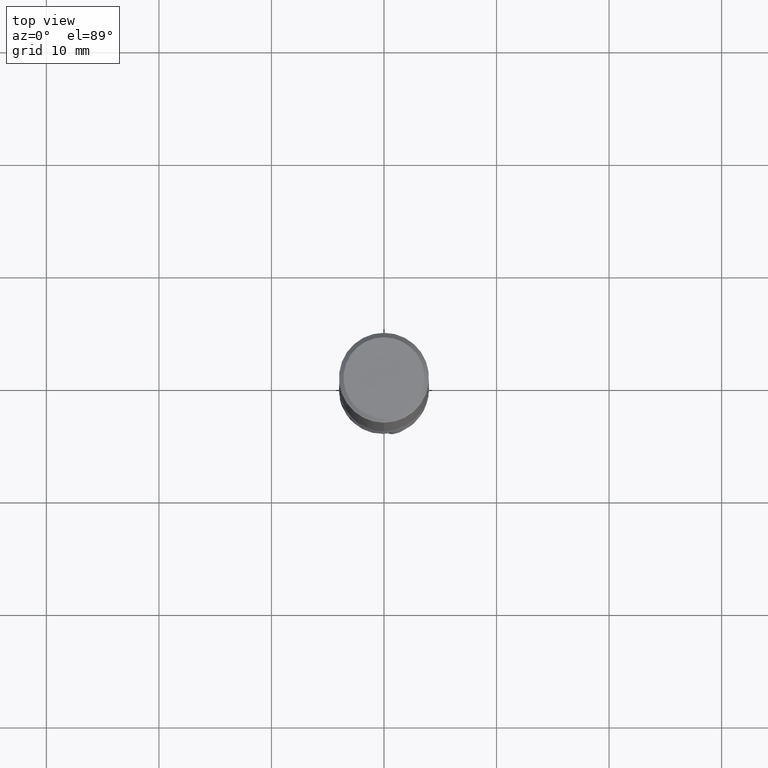
[diagram: clean part render]
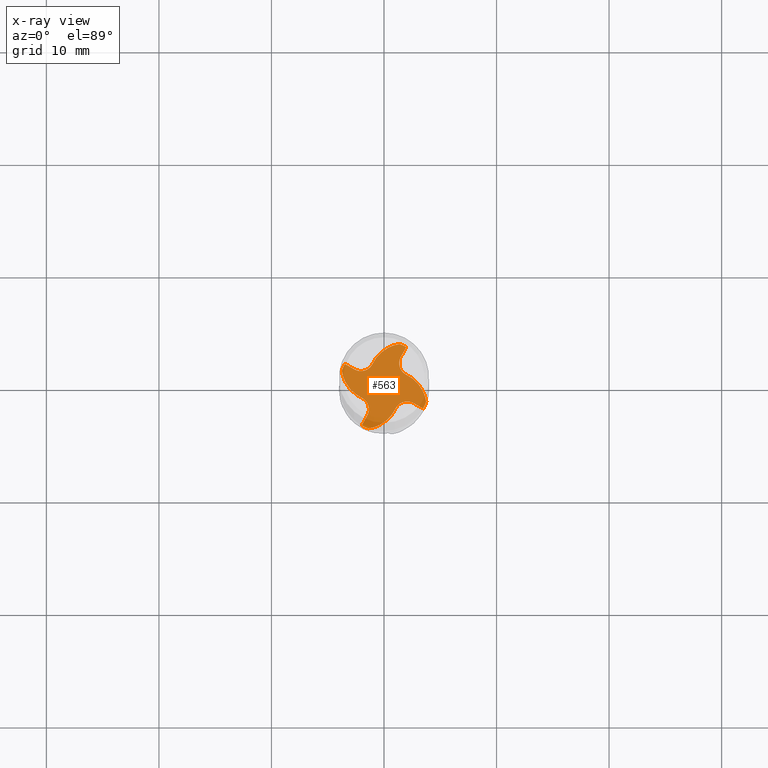
[diagram: x-ray — body ghosted, one internal face saturated and labeled with its STEP entity id]
A machine part, top view, then the same camera in x-ray: the body is ghosted and one INTERNAL B-rep face — a face not visible from any outside direction — is saturated and labeled: STEP entity #563.
In plain terms, the highlighted planar face has unit normal (-0, 0, 1).
Its self-contained STEP definition (entity closure, byte-faithful):
#563=ADVANCED_FACE('',(#1601),#1602,.T.);
#569=VERTEX_POINT('',#1609);
#601=VERTEX_POINT('',#1644);
#603=EDGE_CURVE('',#773,#1179,#1646,.T.);
#607=VERTEX_POINT('',#1650);
#617=VERTEX_POINT('',#1661);
#629=EDGE_CURVE('',#601,#669,#1673,.T.);
#669=VERTEX_POINT('',#1716);
#677=VERTEX_POINT('',#1724);
#741=EDGE_CURVE('',#1547,#677,#1795,.T.);
#747=VERTEX_POINT('',#1801);
#751=EDGE_CURVE('',#805,#1375,#1805,.T.);
#757=EDGE_CURVE('',#1447,#1241,#1811,.T.);
#763=VERTEX_POINT('',#1817);
#773=VERTEX_POINT('',#1828);
#805=VERTEX_POINT('',#1862);
#841=EDGE_CURVE('',#1447,#1443,#1899,.T.);
#847=EDGE_CURVE('',#763,#1209,#1906,.T.);
#853=VERTEX_POINT('',#1912);
#941=EDGE_CURVE('',#1143,#1175,#2013,.T.);
#951=VERTEX_POINT('',#2024);
#953=EDGE_CURVE('',#763,#617,#2026,.T.);
#997=EDGE_CURVE('',#1477,#601,#2073,.T.);
#999=EDGE_CURVE('',#1443,#1367,#2075,.T.);
#1025=EDGE_CURVE('',#1033,#1241,#2102,.T.);
#1033=VERTEX_POINT('',#2110);
#1079=EDGE_CURVE('',#677,#1179,#2158,.T.);
#1089=EDGE_CURVE('',#1551,#569,#2169,.T.);
#1097=VERTEX_POINT('',#2177);
#1143=VERTEX_POINT('',#2227);
#1167=EDGE_CURVE('',#1391,#747,#2254,.T.);
#1175=VERTEX_POINT('',#2262);
#1179=VERTEX_POINT('',#2267);
#1191=EDGE_CURVE('',#1511,#747,#2280,.T.);
#1205=EDGE_CURVE('',#773,#1477,#2297,.T.);
#1209=VERTEX_POINT('',#2301);
#1235=EDGE_CURVE('',#951,#1097,#2330,.T.);
#1237=EDGE_CURVE('',#1175,#1391,#2332,.T.);
#1241=VERTEX_POINT('',#2337);
#1297=EDGE_CURVE('',#607,#1033,#2403,.T.);
#1299=EDGE_CURVE('',#569,#1209,#2405,.T.);
#1315=EDGE_CURVE('',#1511,#805,#2423,.T.);
#1341=EDGE_CURVE('',#1097,#1547,#2455,.T.);
#1345=EDGE_CURVE('',#669,#607,#2459,.T.);
#1367=VERTEX_POINT('',#2482);
#1375=VERTEX_POINT('',#2490);
#1391=VERTEX_POINT('',#2506);
#1395=EDGE_CURVE('',#853,#1551,#2510,.T.);
#1409=EDGE_CURVE('',#1367,#1143,#2525,.T.);
#1443=VERTEX_POINT('',#2562);
#1447=VERTEX_POINT('',#2567);
#1471=EDGE_CURVE('',#617,#951,#2593,.T.);
#1477=VERTEX_POINT('',#2599);
#1491=EDGE_CURVE('',#1375,#853,#2615,.T.);
#1511=VERTEX_POINT('',#2636);
#1547=VERTEX_POINT('',#2676);
#1551=VERTEX_POINT('',#2680);
#1601=FACE_OUTER_BOUND('',#2753,.T.);
#1602=PLANE('',#2754);
#1609=CARTESIAN_POINT('',(2.61301392435057,-1.49564121686378,-44.0));
#1644=CARTESIAN_POINT('',(0.36072252315724,3.41854909212183,-44.0));
#1646=CIRCLE('',#2931,3.9999);
#1650=CARTESIAN_POINT('',(-1.0589478404697,1.91326685878892,-44.0));
#1661=CARTESIAN_POINT('',(3.74714417117481,-1.37336097851287,-44.0));
#1673=B_SPLINE_CURVE_WITH_KNOTS('',3,(#2998,#2999,#3000,#3001,#3002,#3003,#3004,#3005),.UNSPECIFIED.,.F.,.F.,(4,2,2,4),(0.0,1.24316877424402,2.3965043422874,3.54981014661205),.UNSPECIFIED.);
#1716=CARTESIAN_POINT('',(-1.06096110171223,1.91685593515722,-44.0));
#1724=CARTESIAN_POINT('',(1.49564121686378,2.61301392435057,-44.0));
#1795=B_SPLINE_CURVE_WITH_KNOTS('',3,(#3818,#3819,#3820,#3821,#3822,#3823,#3824,#3825,#3826,#3827),.UNSPECIFIED.,.F.,.F.,(4,2,2,2,4),(0.0,0.449312297182821,0.898616607515786,1.34788740613569,1.79472198905624),.UNSPECIFIED.);
#1801=CARTESIAN_POINT('',(-1.98055670689312,-3.47513958579805,-44.0));
#1805=B_SPLINE_CURVE_WITH_KNOTS('',3,(#3872,#3873,#3874,#3875,#3876,#3877,#3878,#3879),.UNSPECIFIED.,.F.,.F.,(4,2,2,4),(0.0,1.24316877424394,2.39650434228716,3.54981014661169),.UNSPECIFIED.);
#1811=CIRCLE('',#3898,3.9999);
#1817=CARTESIAN_POINT('',(3.74983646252386,-1.39209429074557,-44.0));
#1828=CARTESIAN_POINT('',(1.39209429074557,3.74983646252386,-44.0));
#1862=CARTESIAN_POINT('',(-1.37336097851285,-3.7471441711748,-44.0));
#1899=B_SPLINE_CURVE_WITH_KNOTS('',3,(#4345,#4346,#4347,#4348,#4349,#4350,#4351,#4352),.UNSPECIFIED.,.F.,.F.,(4,2,2,4),(0.0,1.24316877424393,2.39650434228715,3.54981014661168),.UNSPECIFIED.);
#1906=CIRCLE('',#4362,3.9999);
#1912=CARTESIAN_POINT('',(1.06096110171223,-1.91685593515722,-44.0));
#2013=B_SPLINE_CURVE_WITH_KNOTS('',3,(#5562,#5563,#5564,#5565,#5566,#5567),.UNSPECIFIED.,.F.,.F.,(4,2,4),(0.0,0.00780925584502571,0.0156184467680796),.UNSPECIFIED.);
#2024=CARTESIAN_POINT('',(3.41854909212073,-0.360722523155148,-44.0));
#2026=B_SPLINE_CURVE_WITH_KNOTS('',3,(#5899,#5900,#5901,#5902,#5903,#5904,#5905,#5906),.UNSPECIFIED.,.F.,.F.,(4,2,2,4),(0.0,1.24316877424394,2.39650434228716,3.54981014661169),.UNSPECIFIED.);
#2073=B_SPLINE_CURVE_WITH_KNOTS('',3,(#6084,#6085,#6086,#6087,#6088,#6089,#6090,#6091),.UNSPECIFIED.,.F.,.F.,(4,2,2,4),(0.0,1.24316877424402,2.3965043422874,3.54981014661205),.UNSPECIFIED.);
#2075=B_SPLINE_CURVE_WITH_KNOTS('',3,(#6094,#6095,#6096,#6097,#6098,#6099,#6100,#6101),.UNSPECIFIED.,.F.,.F.,(4,2,2,4),(0.0,1.24316877424393,2.39650434228715,3.54981014661168),.UNSPECIFIED.);
#2102=B_SPLINE_CURVE_WITH_KNOTS('',3,(#6149,#6150,#6151,#6152,#6153,#6154),.UNSPECIFIED.,.F.,.F.,(4,2,4),(0.0,0.574999980618232,1.14999996123919),.UNSPECIFIED.);
#2110=CARTESIAN_POINT('',(-2.61301392435057,1.49564121686378,-44.0));
#2158=B_SPLINE_CURVE_WITH_KNOTS('',3,(#6632,#6633,#6634,#6635,#6636,#6637),.UNSPECIFIED.,.F.,.F.,(4,2,4),(0.0,0.574999980618233,1.14999996123919),.UNSPECIFIED.);
#2169=B_SPLINE_CURVE_WITH_KNOTS('',3,(#6664,#6665,#6666,#6667,#6668,#6669,#6670,#6671,#6672,#6673),.UNSPECIFIED.,.F.,.F.,(4,2,2,2,4),(0.0,0.449312295484432,0.898616610581144,1.34788741758351,1.79481602985569),.UNSPECIFIED.);
#2177=CARTESIAN_POINT('',(1.91685593515722,1.06096110171223,-44.0));
#2227=CARTESIAN_POINT('',(-1.91685593515722,-1.06096110171223,-44.0));
#2254=B_SPLINE_CURVE_WITH_KNOTS('',3,(#7468,#7469,#7470,#7471,#7472,#7473),.UNSPECIFIED.,.F.,.F.,(4,2,4),(0.0,0.574999980618233,1.14999996123919),.UNSPECIFIED.);
#2262=CARTESIAN_POINT('',(-1.91326685878892,-1.0589478404697,-44.0));
#2267=CARTESIAN_POINT('',(1.98055670689312,3.47513958579805,-44.0));
#2280=CIRCLE('',#7760,3.9999);
#2297=B_SPLINE_CURVE_WITH_KNOTS('',3,(#7782,#7783,#7784,#7785,#7786,#7787,#7788,#7789),.UNSPECIFIED.,.F.,.F.,(4,2,2,4),(0.0,1.24316877424402,2.3965043422874,3.54981014661205),.UNSPECIFIED.);
#2301=CARTESIAN_POINT('',(3.47513958579806,-1.98055670689311,-44.0));
#2330=B_SPLINE_CURVE_WITH_KNOTS('',3,(#7901,#7902,#7903,#7904,#7905,#7906,#7907,#7908),.UNSPECIFIED.,.F.,.F.,(4,2,2,4),(0.0,1.24316877424394,2.39650434228716,3.54981014661169),.UNSPECIFIED.);
#2332=B_SPLINE_CURVE_WITH_KNOTS('',3,(#7911,#7912,#7913,#7914,#7915,#7916,#7917,#7918,#7919,#7920),.UNSPECIFIED.,.F.,.F.,(4,2,2,2,4),(0.0,0.449312219034821,0.898616743438961,1.34788792053467,1.79897160132077),.UNSPECIFIED.);
#2337=CARTESIAN_POINT('',(-3.47513958579806,1.98055670689311,-44.0));
#2403=B_SPLINE_CURVE_WITH_KNOTS('',3,(#8511,#8512,#8513,#8514,#8515,#8516,#8517,#8518,#8519,#8520),.UNSPECIFIED.,.F.,.F.,(4,2,2,2,4),(0.0,0.449312264804202,0.898616665085287,1.3478876222849,1.79650165292875),.UNSPECIFIED.);
#2405=B_SPLINE_CURVE_WITH_KNOTS('',3,(#8523,#8524,#8525,#8526,#8527,#8528),.UNSPECIFIED.,.F.,.F.,(4,2,4),(0.0,0.574999980618233,1.14999996123919),.UNSPECIFIED.);
#2423=B_SPLINE_CURVE_WITH_KNOTS('',3,(#8582,#8583,#8584,#8585,#8586,#8587,#8588,#8589),.UNSPECIFIED.,.F.,.F.,(4,2,2,4),(0.0,1.24316877424394,2.39650434228716,3.54981014661169),.UNSPECIFIED.);
#2455=B_SPLINE_CURVE_WITH_KNOTS('',3,(#9233,#9234,#9235,#9236,#9237,#9238),.UNSPECIFIED.,.F.,.F.,(4,2,4),(0.0,0.00579762788087207,0.0115952565228072),.UNSPECIFIED.);
#2459=B_SPLINE_CURVE_WITH_KNOTS('',3,(#9269,#9270,#9271,#9272,#9273,#9274),.UNSPECIFIED.,.F.,.F.,(4,2,4),(0.0,0.00672082863639891,0.0124370226715493),.UNSPECIFIED.);
#2482=CARTESIAN_POINT('',(-3.41854909212219,0.360722523157927,-44.0));
#2490=CARTESIAN_POINT('',(-0.360722523158075,-3.41854909212226,-44.0));
#2506=CARTESIAN_POINT('',(-1.49564121686378,-2.61301392435057,-44.0));
#2510=B_SPLINE_CURVE_WITH_KNOTS('',3,(#9701,#9702,#9703,#9704,#9705,#9706),.UNSPECIFIED.,.F.,.F.,(4,2,4),(0.0,0.00584216442150327,0.0116841850810413),.UNSPECIFIED.);
#2525=B_SPLINE_CURVE_WITH_KNOTS('',3,(#10121,#10122,#10123,#10124,#10125,#10126,#10127,#10128),.UNSPECIFIED.,.F.,.F.,(4,2,2,4),(0.0,1.24316877424393,2.39650434228715,3.54981014661168),.UNSPECIFIED.);
#2562=CARTESIAN_POINT('',(-3.7471441711748,1.37336097851283,-44.0));
#2567=CARTESIAN_POINT('',(-3.74983646252386,1.39209429074557,-44.0));
#2593=B_SPLINE_CURVE_WITH_KNOTS('',3,(#10376,#10377,#10378,#10379,#10380,#10381,#10382,#10383),.UNSPECIFIED.,.F.,.F.,(4,2,2,4),(0.0,1.24316877424394,2.39650434228716,3.54981014661169),.UNSPECIFIED.);
#2599=CARTESIAN_POINT('',(1.37336097851283,3.7471441711748,-44.0));
#2615=B_SPLINE_CURVE_WITH_KNOTS('',3,(#10685,#10686,#10687,#10688,#10689,#10690,#10691,#10692),.UNSPECIFIED.,.F.,.F.,(4,2,2,4),(0.0,1.24316877424394,2.39650434228716,3.54981014661169),.UNSPECIFIED.);
#2636=CARTESIAN_POINT('',(-1.39209429074557,-3.74983646252386,-44.0));
#2676=CARTESIAN_POINT('',(1.91326685878892,1.0589478404697,-44.0));
#2680=CARTESIAN_POINT('',(1.0589478404697,-1.91326685878892,-44.0));
#2753=EDGE_LOOP('',(#11197,#11198,#11199,#11200,#11201,#11202,#11203,#11204,#11205,#11206,#11207,#11208,#11209,#11210,#11211,#11212,#11213,#11214,#11215,#11216,#11217,#11218,#11219,#11220,#11221,#11222,#11223,#11224));
#2754=AXIS2_PLACEMENT_3D('',#11225,#11226,#11227);
#2931=AXIS2_PLACEMENT_3D('',#11272,#11273,#11274);
#2998=CARTESIAN_POINT('',(1.73560850998534,3.77930283926247,-44.0));
#2999=CARTESIAN_POINT('',(1.32142284830246,3.7663039497278,-44.0));
#3000=CARTESIAN_POINT('',(0.913736565610568,3.67253104281549,-44.0));
#3001=CARTESIAN_POINT('',(0.18458913053135,3.34621802285009,-44.0));
#3002=CARTESIAN_POINT('',(-0.134973074093248,3.12688057785623,-44.0));
#3003=CARTESIAN_POINT('',(-0.680365357066258,2.58491796789671,-44.0));
#3004=CARTESIAN_POINT('',(-0.901710024714707,2.26675509701018,-44.0));
#3005=CARTESIAN_POINT('',(-1.06096110171223,1.91685593515722,-44.0));
#3818=CARTESIAN_POINT('',(1.91916216179952,1.05548984159376,-44.0));
#3819=CARTESIAN_POINT('',(1.78975103881065,1.13088243747288,-44.0));
#3820=CARTESIAN_POINT('',(1.67630240795496,1.23083146157447,-44.0));
#3821=CARTESIAN_POINT('',(1.49410550137549,1.46858721132825,-44.0));
#3822=CARTESIAN_POINT('',(1.42709764829682,1.60412109131551,-44.0));
#3823=CARTESIAN_POINT('',(1.34881239619802,1.89323431802331,-44.0));
#3824=CARTESIAN_POINT('',(1.33827925464324,2.04404851856292,-44.0));
#3825=CARTESIAN_POINT('',(1.3755187306204,2.34041913057413,-44.0));
#3826=CARTESIAN_POINT('',(1.42262321036221,2.48319561037499,-44.0));
#3827=CARTESIAN_POINT('',(1.4956412168638,2.61301392435056,-44.0));
#3872=CARTESIAN_POINT('',(-1.73560850998534,-3.77930283926247,-44.0));
#3873=CARTESIAN_POINT('',(-1.32142284830249,-3.7663039497278,-44.0));
#3874=CARTESIAN_POINT('',(-0.913736565610575,-3.67253104281549,-44.0));
#3875=CARTESIAN_POINT('',(-0.184589130531349,-3.34621802285009,-44.0));
#3876=CARTESIAN_POINT('',(0.134973074093255,-3.12688057785623,-44.0));
#3877=CARTESIAN_POINT('',(0.680365357066281,-2.5849179678967,-44.0));
#3878=CARTESIAN_POINT('',(0.901710024714724,-2.26675509701014,-44.0));
#3879=CARTESIAN_POINT('',(1.06096110171223,-1.91685593515722,-44.0));
#3898=AXIS2_PLACEMENT_3D('',#11403,#11404,#11405);
#4345=CARTESIAN_POINT('',(-3.77930283926247,1.73560850998534,-44.0));
#4346=CARTESIAN_POINT('',(-3.7663039497278,1.32142284830249,-44.0));
#4347=CARTESIAN_POINT('',(-3.6725310428155,0.913736565610577,-44.0));
#4348=CARTESIAN_POINT('',(-3.34621802285009,0.184589130531345,-44.0));
#4349=CARTESIAN_POINT('',(-3.12688057785623,-0.134973074093257,-44.0));
#4350=CARTESIAN_POINT('',(-2.5849179678967,-0.680365357066279,-44.0));
#4351=CARTESIAN_POINT('',(-2.26675509701014,-0.901710024714722,-44.0));
#4352=CARTESIAN_POINT('',(-1.91685593515722,-1.06096110171223,-44.0));
#4362=AXIS2_PLACEMENT_3D('',#11467,#11468,#11469);
#5562=CARTESIAN_POINT('',(-1.9168559351283,-1.0609611017638,-44.0));
#5563=CARTESIAN_POINT('',(-1.9145856393296,-1.05968759873276,-44.0));
#5564=CARTESIAN_POINT('',(-1.91231535515792,-1.05841410272036,-44.0));
#5565=CARTESIAN_POINT('',(-1.90777480527067,-1.0558671220415,-44.0));
#5566=CARTESIAN_POINT('',(-1.90550450532072,-1.05459361817155,-44.0));
#5567=CARTESIAN_POINT('',(-1.90323420515515,-1.05332011467723,-44.0));
#5899=CARTESIAN_POINT('',(3.77930283926247,-1.73560850998534,-44.0));
#5900=CARTESIAN_POINT('',(3.7663039497278,-1.32142284830249,-44.0));
#5901=CARTESIAN_POINT('',(3.67253104281549,-0.913736565610575,-44.0));
#5902=CARTESIAN_POINT('',(3.34621802285009,-0.184589130531349,-44.0));
#5903=CARTESIAN_POINT('',(3.12688057785623,0.134973074093255,-44.0));
#5904=CARTESIAN_POINT('',(2.5849179678967,0.680365357066281,-44.0));
#5905=CARTESIAN_POINT('',(2.26675509701014,0.901710024714724,-44.0));
#5906=CARTESIAN_POINT('',(1.91685593515722,1.06096110171223,-44.0));
#6084=CARTESIAN_POINT('',(1.73560850998534,3.77930283926247,-44.0));
#6085=CARTESIAN_POINT('',(1.32142284830246,3.7663039497278,-44.0));
#6086=CARTESIAN_POINT('',(0.913736565610568,3.67253104281549,-44.0));
#6087=CARTESIAN_POINT('',(0.18458913053135,3.34621802285009,-44.0));
#6088=CARTESIAN_POINT('',(-0.134973074093248,3.12688057785623,-44.0));
#6089=CARTESIAN_POINT('',(-0.680365357066258,2.58491796789671,-44.0));
#6090=CARTESIAN_POINT('',(-0.901710024714707,2.26675509701018,-44.0));
#6091=CARTESIAN_POINT('',(-1.06096110171223,1.91685593515722,-44.0));
#6094=CARTESIAN_POINT('',(-3.77930283926247,1.73560850998534,-44.0));
#6095=CARTESIAN_POINT('',(-3.7663039497278,1.32142284830249,-44.0));
#6096=CARTESIAN_POINT('',(-3.6725310428155,0.913736565610577,-44.0));
#6097=CARTESIAN_POINT('',(-3.34621802285009,0.184589130531345,-44.0));
#6098=CARTESIAN_POINT('',(-3.12688057785623,-0.134973074093257,-44.0));
#6099=CARTESIAN_POINT('',(-2.5849179678967,-0.680365357066279,-44.0));
#6100=CARTESIAN_POINT('',(-2.26675509701014,-0.901710024714722,-44.0));
#6101=CARTESIAN_POINT('',(-1.91685593515722,-1.06096110171223,-44.0));
#6149=CARTESIAN_POINT('',(-2.6130139243996,1.49564121677662,-44.0));
#6150=CARTESIAN_POINT('',(-2.78006853330063,1.58960326379282,-44.0));
#6151=CARTESIAN_POINT('',(-2.94712306279302,1.68356545198936,-44.0));
#6152=CARTESIAN_POINT('',(-3.28123196296042,1.87149011074343,-44.0));
#6153=CARTESIAN_POINT('',(-3.44828633363555,1.96545258130104,-44.0));
#6154=CARTESIAN_POINT('',(-3.61534062490126,2.05941519303895,-44.0));
#6632=CARTESIAN_POINT('',(1.49564121677662,2.6130139243996,-44.0));
#6633=CARTESIAN_POINT('',(1.58960326379283,2.78006853330063,-44.0));
#6634=CARTESIAN_POINT('',(1.68356545198936,2.94712306279302,-44.0));
#6635=CARTESIAN_POINT('',(1.87149011074343,3.28123196296042,-44.0));
#6636=CARTESIAN_POINT('',(1.96545258130104,3.44828633363555,-44.0));
#6637=CARTESIAN_POINT('',(2.05941519303895,3.61534062490126,-44.0));
#6664=CARTESIAN_POINT('',(1.05544294340821,-1.91924266986513,-44.0));
#6665=CARTESIAN_POINT('',(1.13082505565766,-1.7898254405258,-44.0));
#6666=CARTESIAN_POINT('',(1.23076488907355,-1.67636871399895,-44.0));
#6667=CARTESIAN_POINT('',(1.46850587943814,-1.49415254715562,-44.0));
#6668=CARTESIAN_POINT('',(1.60403433234493,-1.42713371416767,-44.0));
#6669=CARTESIAN_POINT('',(1.89314122054869,-1.34882504009744,-44.0));
#6670=CARTESIAN_POINT('',(2.04395457027765,-1.33827968088099,-44.0));
#6671=CARTESIAN_POINT('',(2.34035929978259,-1.37549905312834,-44.0));
#6672=CARTESIAN_POINT('',(2.48316829217483,-1.42260784488366,-44.0));
#6673=CARTESIAN_POINT('',(2.61301392435057,-1.49564121686379,-44.0));
#7468=CARTESIAN_POINT('',(-1.49564121677662,-2.6130139243996,-44.0));
#7469=CARTESIAN_POINT('',(-1.58960326379283,-2.78006853330063,-44.0));
#7470=CARTESIAN_POINT('',(-1.68356545198937,-2.94712306279301,-44.0));
#7471=CARTESIAN_POINT('',(-1.87149011074344,-3.28123196296041,-44.0));
#7472=CARTESIAN_POINT('',(-1.96545258130104,-3.44828633363555,-44.0));
#7473=CARTESIAN_POINT('',(-2.05941519303895,-3.61534062490126,-44.0));
#7760=AXIS2_PLACEMENT_3D('',#11876,#11877,#11878);
#7782=CARTESIAN_POINT('',(1.73560850998534,3.77930283926247,-44.0));
#7783=CARTESIAN_POINT('',(1.32142284830246,3.7663039497278,-44.0));
#7784=CARTESIAN_POINT('',(0.913736565610568,3.67253104281549,-44.0));
#7785=CARTESIAN_POINT('',(0.18458913053135,3.34621802285009,-44.0));
#7786=CARTESIAN_POINT('',(-0.134973074093248,3.12688057785623,-44.0));
#7787=CARTESIAN_POINT('',(-0.680365357066258,2.58491796789671,-44.0));
#7788=CARTESIAN_POINT('',(-0.901710024714707,2.26675509701018,-44.0));
#7789=CARTESIAN_POINT('',(-1.06096110171223,1.91685593515722,-44.0));
#7901=CARTESIAN_POINT('',(3.77930283926247,-1.73560850998534,-44.0));
#7902=CARTESIAN_POINT('',(3.7663039497278,-1.32142284830249,-44.0));
#7903=CARTESIAN_POINT('',(3.67253104281549,-0.913736565610575,-44.0));
#7904=CARTESIAN_POINT('',(3.34621802285009,-0.184589130531349,-44.0));
#7905=CARTESIAN_POINT('',(3.12688057785623,0.134973074093255,-44.0));
#7906=CARTESIAN_POINT('',(2.5849179678967,0.680365357066281,-44.0));
#7907=CARTESIAN_POINT('',(2.26675509701014,0.901710024714724,-44.0));
#7908=CARTESIAN_POINT('',(1.91685593515722,1.06096110171223,-44.0));
#7911=CARTESIAN_POINT('',(-1.92280371770092,-1.05337725354957,-44.0));
#7912=CARTESIAN_POINT('',(-1.79311752692296,-1.12829565172572,-44.0));
#7913=CARTESIAN_POINT('',(-1.67930383606409,-1.22782873895449,-44.0));
#7914=CARTESIAN_POINT('',(-1.49623784679532,-1.46491602616781,-44.0));
#7915=CARTESIAN_POINT('',(-1.42873430449899,-1.60020379471766,-44.0));
#7916=CARTESIAN_POINT('',(-1.34939124088409,-1.88902872088567,-44.0));
#7917=CARTESIAN_POINT('',(-1.33830611177018,-2.03980348933476,-44.0));
#7918=CARTESIAN_POINT('',(-1.37463193853961,-2.33771450784838,-44.0));
#7919=CARTESIAN_POINT('',(-1.42192885887958,-2.48196112667572,-44.0));
#7920=CARTESIAN_POINT('',(-1.49564121686379,-2.61301392435057,-44.0));
#8511=CARTESIAN_POINT('',(-1.05460345943401,1.92068631825678,-44.0));
#8512=CARTESIAN_POINT('',(-1.12979758209789,1.79115978448656,-44.0));
#8513=CARTESIAN_POINT('',(-1.22957257295208,1.6775580797297,-44.0));
#8514=CARTESIAN_POINT('',(-1.46704875539936,1.49499690011945,-44.0));
#8515=CARTESIAN_POINT('',(-1.60247978390726,1.42778134086061,-44.0));
#8516=CARTESIAN_POINT('',(-1.89147274064312,1.34905294492004,-44.0));
#8517=CARTESIAN_POINT('',(-2.04227067280611,1.33828861137784,-44.0));
#8518=CARTESIAN_POINT('',(-2.33928671225985,1.37514675639252,-44.0));
#8519=CARTESIAN_POINT('',(-2.48267863022432,1.42233242812319,-44.0));
#8520=CARTESIAN_POINT('',(-2.61301392435057,1.49564121686379,-44.0));
#8523=CARTESIAN_POINT('',(2.61301392439959,-1.49564121677663,-44.0));
#8524=CARTESIAN_POINT('',(2.78006853330062,-1.58960326379284,-44.0));
#8525=CARTESIAN_POINT('',(2.94712306279301,-1.68356545198937,-44.0));
#8526=CARTESIAN_POINT('',(3.28123196296041,-1.87149011074343,-44.0));
#8527=CARTESIAN_POINT('',(3.44828633363555,-1.96545258130104,-44.0));
#8528=CARTESIAN_POINT('',(3.61534062490126,-2.05941519303895,-44.0));
#8582=CARTESIAN_POINT('',(-1.73560850998534,-3.77930283926247,-44.0));
#8583=CARTESIAN_POINT('',(-1.32142284830249,-3.7663039497278,-44.0));
#8584=CARTESIAN_POINT('',(-0.913736565610575,-3.67253104281549,-44.0));
#8585=CARTESIAN_POINT('',(-0.184589130531349,-3.34621802285009,-44.0));
#8586=CARTESIAN_POINT('',(0.134973074093255,-3.12688057785623,-44.0));
#8587=CARTESIAN_POINT('',(0.680365357066281,-2.5849179678967,-44.0));
#8588=CARTESIAN_POINT('',(0.901710024714724,-2.26675509701014,-44.0));
#8589=CARTESIAN_POINT('',(1.06096110171223,-1.91685593515722,-44.0));
#9233=CARTESIAN_POINT('',(1.9168559351283,1.0609611017638,-44.0));
#9234=CARTESIAN_POINT('',(1.91517045696219,1.06001564718712,-44.0));
#9235=CARTESIAN_POINT('',(1.91348493172867,1.05907016648207,-44.0));
#9236=CARTESIAN_POINT('',(1.91011388079367,1.05717920535692,-44.0));
#9237=CARTESIAN_POINT('',(1.90842837891256,1.05623373829862,-44.0));
#9238=CARTESIAN_POINT('',(1.90674287691462,1.05528827144849,-44.0));
#9269=CARTESIAN_POINT('',(-1.06096110180342,1.9168559351063,-43.9999999999004));
#9270=CARTESIAN_POINT('',(-1.05986509524278,1.91490206532413,-43.9999999999004));
#9271=CARTESIAN_POINT('',(-1.05876908306459,1.91294818487179,-43.9999999999004));
#9272=CARTESIAN_POINT('',(-1.05674089196119,1.90933249121502,-43.9999999999004));
#9273=CARTESIAN_POINT('',(-1.05555560376425,1.90721945562881,-44.0));
#9274=CARTESIAN_POINT('',(-1.05438504216515,1.9051326724936,-44.0));
#9701=CARTESIAN_POINT('',(1.0609611017638,-1.9168559351283,-44.0));
#9702=CARTESIAN_POINT('',(1.06000838434152,-1.91515750936217,-44.0));
#9703=CARTESIAN_POINT('',(1.05905568504099,-1.91345911540658,-44.0));
#9704=CARTESIAN_POINT('',(1.05715031031565,-1.91006236906823,-44.0));
#9705=CARTESIAN_POINT('',(1.0561975907651,-1.90836393802173,-44.0));
#9706=CARTESIAN_POINT('',(1.05524487141751,-1.90666550684157,-44.0));
#10121=CARTESIAN_POINT('',(-3.77930283926247,1.73560850998534,-44.0));
#10122=CARTESIAN_POINT('',(-3.7663039497278,1.32142284830249,-44.0));
#10123=CARTESIAN_POINT('',(-3.6725310428155,0.913736565610577,-44.0));
#10124=CARTESIAN_POINT('',(-3.34621802285009,0.184589130531345,-44.0));
#10125=CARTESIAN_POINT('',(-3.12688057785623,-0.134973074093257,-44.0));
#10126=CARTESIAN_POINT('',(-2.5849179678967,-0.680365357066279,-44.0));
#10127=CARTESIAN_POINT('',(-2.26675509701014,-0.901710024714722,-44.0));
#10128=CARTESIAN_POINT('',(-1.91685593515722,-1.06096110171223,-44.0));
#10376=CARTESIAN_POINT('',(3.77930283926247,-1.73560850998534,-44.0));
#10377=CARTESIAN_POINT('',(3.7663039497278,-1.32142284830249,-44.0));
#10378=CARTESIAN_POINT('',(3.67253104281549,-0.913736565610575,-44.0));
#10379=CARTESIAN_POINT('',(3.34621802285009,-0.184589130531349,-44.0));
#10380=CARTESIAN_POINT('',(3.12688057785623,0.134973074093255,-44.0));
#10381=CARTESIAN_POINT('',(2.5849179678967,0.680365357066281,-44.0));
#10382=CARTESIAN_POINT('',(2.26675509701014,0.901710024714724,-44.0));
#10383=CARTESIAN_POINT('',(1.91685593515722,1.06096110171223,-44.0));
#10685=CARTESIAN_POINT('',(-1.73560850998534,-3.77930283926247,-44.0));
#10686=CARTESIAN_POINT('',(-1.32142284830249,-3.7663039497278,-44.0));
#10687=CARTESIAN_POINT('',(-0.913736565610575,-3.67253104281549,-44.0));
#10688=CARTESIAN_POINT('',(-0.184589130531349,-3.34621802285009,-44.0));
#10689=CARTESIAN_POINT('',(0.134973074093255,-3.12688057785623,-44.0));
#10690=CARTESIAN_POINT('',(0.680365357066281,-2.5849179678967,-44.0));
#10691=CARTESIAN_POINT('',(0.901710024714724,-2.26675509701014,-44.0));
#10692=CARTESIAN_POINT('',(1.06096110171223,-1.91685593515722,-44.0));
#11197=ORIENTED_EDGE('',*,*,#1471,.T.);
#11198=ORIENTED_EDGE('',*,*,#1235,.T.);
#11199=ORIENTED_EDGE('',*,*,#1341,.T.);
#11200=ORIENTED_EDGE('',*,*,#741,.T.);
#11201=ORIENTED_EDGE('',*,*,#1079,.T.);
#11202=ORIENTED_EDGE('',*,*,#603,.F.);
#11203=ORIENTED_EDGE('',*,*,#1205,.T.);
#11204=ORIENTED_EDGE('',*,*,#997,.T.);
#11205=ORIENTED_EDGE('',*,*,#629,.T.);
#11206=ORIENTED_EDGE('',*,*,#1345,.T.);
#11207=ORIENTED_EDGE('',*,*,#1297,.T.);
#11208=ORIENTED_EDGE('',*,*,#1025,.T.);
#11209=ORIENTED_EDGE('',*,*,#757,.F.);
#11210=ORIENTED_EDGE('',*,*,#841,.T.);
#11211=ORIENTED_EDGE('',*,*,#999,.T.);
#11212=ORIENTED_EDGE('',*,*,#1409,.T.);
#11213=ORIENTED_EDGE('',*,*,#941,.T.);
#11214=ORIENTED_EDGE('',*,*,#1237,.T.);
#11215=ORIENTED_EDGE('',*,*,#1167,.T.);
#11216=ORIENTED_EDGE('',*,*,#1191,.F.);
#11217=ORIENTED_EDGE('',*,*,#1315,.T.);
#11218=ORIENTED_EDGE('',*,*,#751,.T.);
#11219=ORIENTED_EDGE('',*,*,#1491,.T.);
#11220=ORIENTED_EDGE('',*,*,#1395,.T.);
#11221=ORIENTED_EDGE('',*,*,#1089,.T.);
#11222=ORIENTED_EDGE('',*,*,#1299,.T.);
#11223=ORIENTED_EDGE('',*,*,#847,.F.);
#11224=ORIENTED_EDGE('',*,*,#953,.T.);
#11225=CARTESIAN_POINT('',(0.0,1.99995,-44.0));
#11226=DIRECTION('',(-0.0,0.0,1.0));
#11227=DIRECTION('',(0.0,-1.0,0.0));
#11272=CARTESIAN_POINT('',(0.0,0.0,-44.0));
#11273=DIRECTION('',(0.0,0.0,-1.0));
#11274=DIRECTION('',(0.0,1.0,0.0));
#11403=CARTESIAN_POINT('',(0.0,0.0,-44.0));
#11404=DIRECTION('',(0.0,0.0,-1.0));
#11405=DIRECTION('',(0.0,1.0,0.0));
#11467=CARTESIAN_POINT('',(0.0,0.0,-44.0));
#11468=DIRECTION('',(0.0,0.0,-1.0));
#11469=DIRECTION('',(0.0,1.0,0.0));
#11876=CARTESIAN_POINT('',(0.0,0.0,-44.0));
#11877=DIRECTION('',(0.0,0.0,-1.0));
#11878=DIRECTION('',(0.0,1.0,0.0));